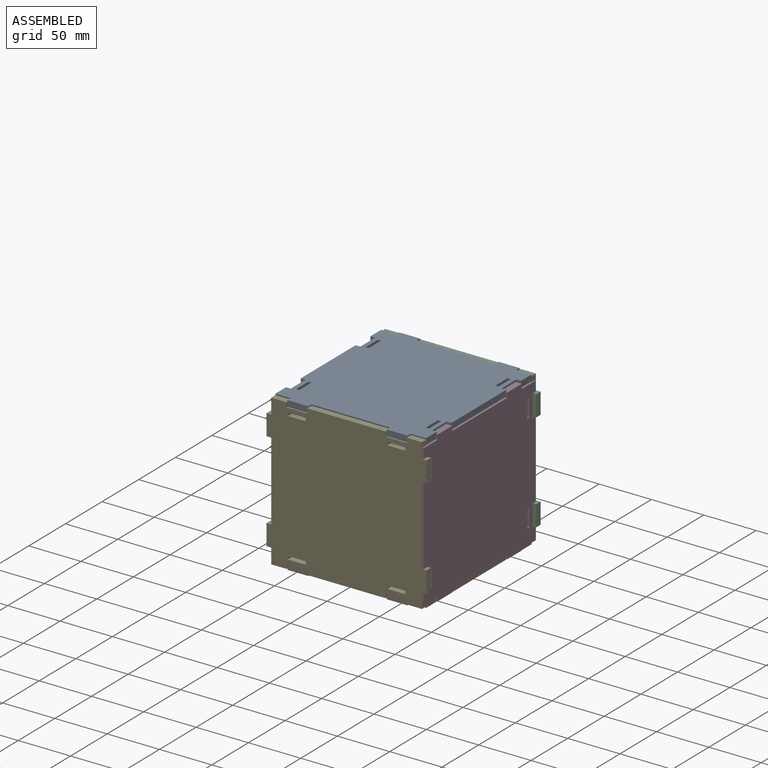
[diagram: assembled view]
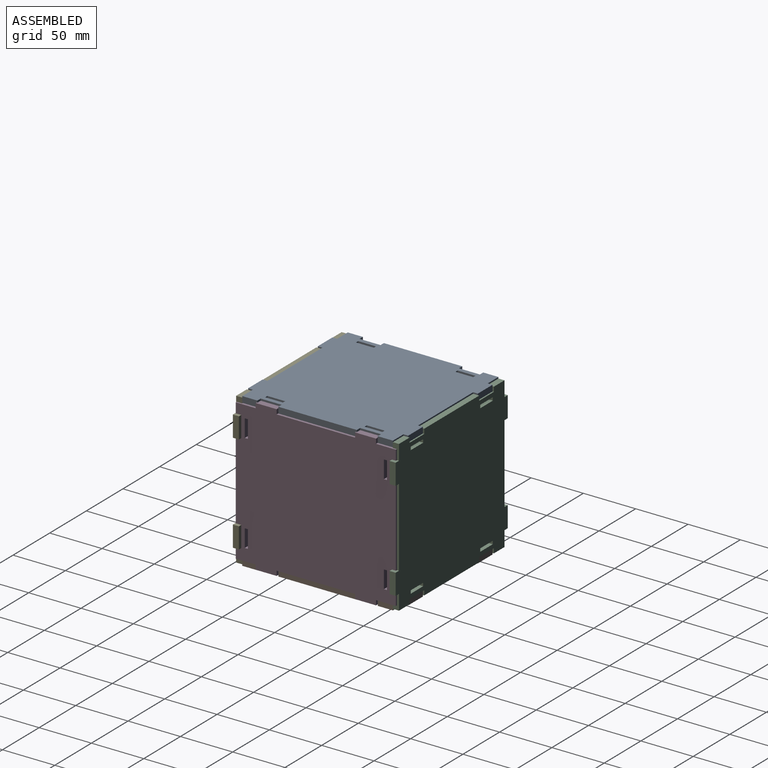
[diagram: assembled view, second angle]
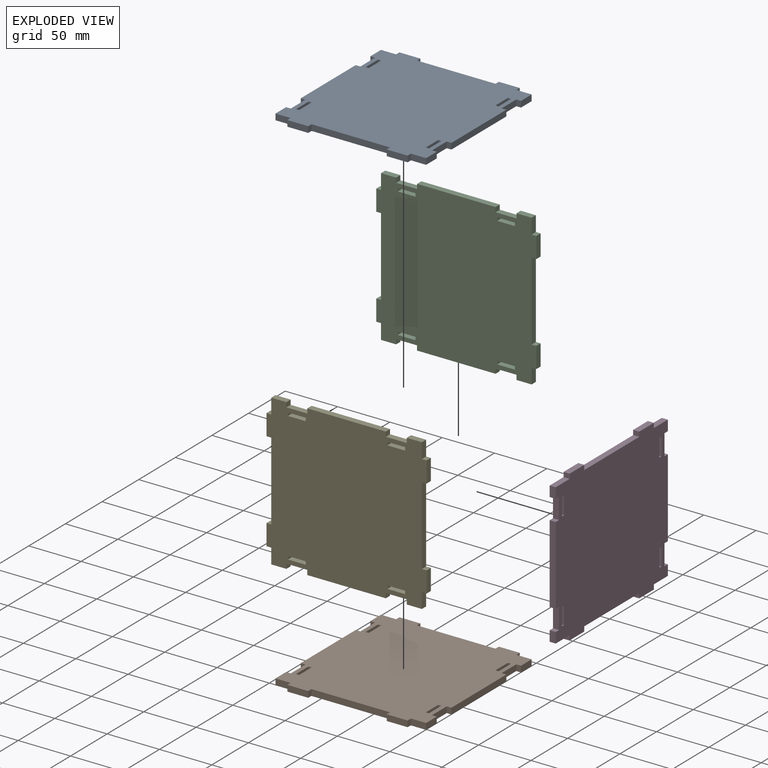
[diagram: exploded view]
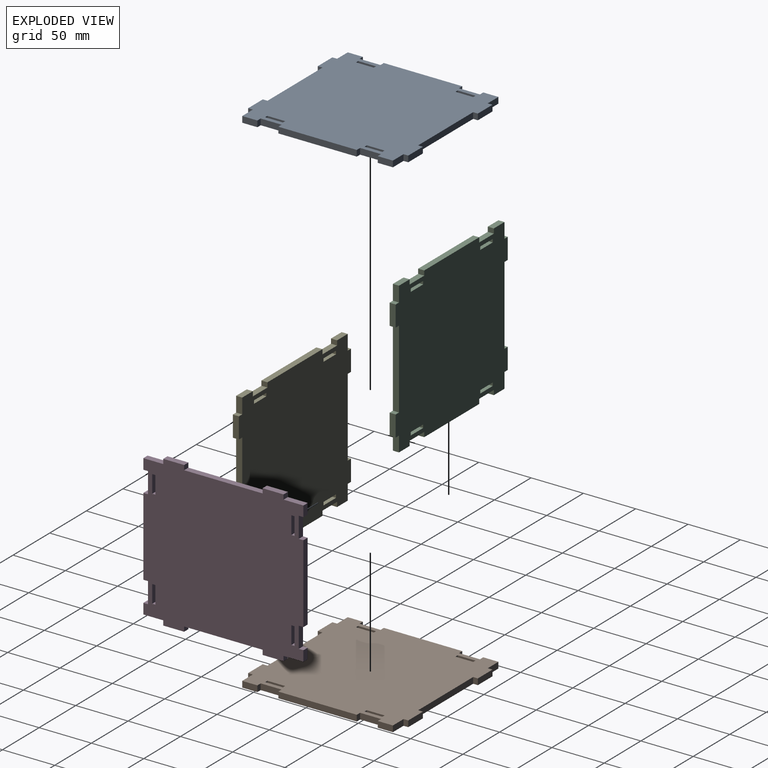
[diagram: exploded view, second angle]
ASSEMBLY  parts=5 mates=10
PART A: 54 faces, bbox 144x5.8x153 mm
  f0: plane 5.8x3mm, normal (0,0,-1), area 17.4mm2, adj f1,f51,f52,f53
  f1: plane 17x5.8mm, normal (-1,0,0), area 98.6mm2, adj f0,f2,f52,f53
  f2: plane 5.8x3mm, normal (0,0,1), area 17.4mm2, adj f1,f51,f52,f53
  f3: plane 5.8x3mm, normal (0,0,1), area 17.4mm2, adj f4,f47,f52,f53
  f4: plane 17x5.8mm, normal (1,0,0), area 98.6mm2, adj f3,f5,f52,f53
  f5: plane 5.8x3mm, normal (0,0,-1), area 17.4mm2, adj f4,f47,f52,f53
  f6: plane 5.8x4.5mm, normal (1,0,0), area 26.1mm2, adj f7,f48,f52,f53
  f7: plane 20x5.8mm, normal (0,0,1), area 116mm2, adj f6,f8,f52,f53
  f8: plane 5.8x4.5mm, normal (-1,0,0), area 26.1mm2, adj f7,f9,f52,f53
  f9: plane 75x5.8mm, normal (0,0,1), area 435mm2, adj f8,f10,f52,f53
  f10: plane 5.8x4.5mm, normal (1,0,0), area 26.1mm2, adj f9,f11,f52,f53
  f11: plane 20x5.8mm, normal (0,0,1), area 116mm2, adj f10,f12,f52,f53
  f12: plane 5.8x4.5mm, normal (-1,0,0), area 26.1mm2, adj f11,f13,f52,f53
  f13: plane 14.5x5.8mm, normal (0,0,1), area 84.1mm2, adj f12,f14,f52,f53
  f14: plane 14.5x5.8mm, normal (-1,0,0), area 84.1mm2, adj f13,f15,f52,f53
  f15: plane 5.8x4.5mm, normal (0,0,-1), area 26.1mm2, adj f14,f16,f52,f53
  f16: plane 20x5.8mm, normal (-1,0,0), area 116mm2, adj f15,f17,f52,f53
  f17: plane 5.8x4.5mm, normal (0,0,1), area 26.1mm2, adj f16,f18,f52,f53
  f18: plane 75x5.8mm, normal (-1,0,0), area 435mm2, adj f17,f19,f52,f53
  f19: plane 5.8x4.5mm, normal (0,0,-1), area 26.1mm2, adj f18,f20,f52,f53
  f20: plane 20x5.8mm, normal (-1,0,0), area 116mm2, adj f19,f21,f52,f53
  f21: plane 5.8x4.5mm, normal (0,0,1), area 26.1mm2, adj f20,f22,f52,f53
  f22: plane 14.5x5.8mm, normal (-1,0,0), area 84.1mm2, adj f21,f23,f52,f53
  f23: plane 14.5x5.8mm, normal (0,0,-1), area 84.1mm2, adj f22,f24,f52,f53
  f24: plane 5.8x4.5mm, normal (-1,0,0), area 26.1mm2, adj f23,f25,f52,f53
  f25: plane 20x5.8mm, normal (0,0,-1), area 116mm2, adj f24,f26,f52,f53
  f26: plane 5.8x4.5mm, normal (1,0,0), area 26.1mm2, adj f25,f27,f52,f53
  f27: plane 75x5.8mm, normal (0,0,-1), area 435mm2, adj f26,f28,f52,f53
  f28: plane 5.8x4.5mm, normal (-1,0,0), area 26.1mm2, adj f27,f29,f52,f53
  f29: plane 20x5.8mm, normal (0,0,-1), area 116mm2, adj f28,f30,f52,f53
  f30: plane 5.8x4.5mm, normal (1,0,0), area 26.1mm2, adj f29,f31,f52,f53
  f31: plane 14.5x5.8mm, normal (0,0,-1), area 84.1mm2, adj f30,f32,f52,f53
  f32: plane 14.5x5.8mm, normal (1,0,0), area 84.1mm2, adj f31,f33,f52,f53
  f33: plane 5.8x4.5mm, normal (0,0,1), area 26.1mm2, adj f32,f34,f52,f53
  f34: plane 20x5.8mm, normal (1,0,0), area 116mm2, adj f33,f35,f52,f53
  f35: plane 5.8x4.5mm, normal (0,0,-1), area 26.1mm2, adj f34,f36,f52,f53
  f36: plane 75x5.8mm, normal (1,0,0), area 435mm2, adj f35,f37,f52,f53
  f37: plane 5.8x4.5mm, normal (0,0,1), area 26.1mm2, adj f36,f38,f52,f53
  f38: plane 20x5.8mm, normal (1,0,0), area 116mm2, adj f37,f39,f52,f53
  f39: plane 5.8x4.5mm, normal (0,0,-1), area 26.1mm2, adj f38,f40,f52,f53
  f40: plane 14.5x5.8mm, normal (1,0,0), area 84.1mm2, adj f39,f48,f52,f53
  f41: plane 17x5.8mm, normal (-1,0,0), area 98.6mm2, adj f42,f49,f52,f53
  f42: plane 5.8x3mm, normal (0,0,1), area 17.4mm2, adj f41,f43,f52,f53
  f43: plane 17x5.8mm, normal (1,0,0), area 98.6mm2, adj f42,f49,f52,f53
  f44: plane 17x5.8mm, normal (1,0,0), area 98.6mm2, adj f45,f50,f52,f53
  f45: plane 5.8x3mm, normal (0,0,-1), area 17.4mm2, adj f44,f46,f52,f53
  f46: plane 17x5.8mm, normal (-1,0,0), area 98.6mm2, adj f45,f50,f52,f53
  f47: plane 17x5.8mm, normal (-1,0,0), area 98.6mm2, adj f3,f5,f52,f53
  f48: plane 14.5x5.8mm, normal (0,0,1), area 84.1mm2, adj f6,f40,f52,f53
  f49: plane 5.8x3mm, normal (0,0,-1), area 17.4mm2, adj f41,f43,f52,f53
  f50: plane 5.8x3mm, normal (0,0,1), area 17.4mm2, adj f44,f46,f52,f53
  f51: plane 17x5.8mm, normal (1,0,0), area 98.6mm2, adj f0,f2,f52,f53
  f52: plane 153x144mm, normal (0,-1,0), area 20532mm2, adj f0,f1,f2,f3,f4,f5,f6,f7
  f53: plane 153x144mm, normal (0,1,0), area 20532mm2, adj f0,f1,f2,f3,f4,f5,f6,f7
PART B: same geometry as A
PART C: same geometry as A
PART D: 54 faces, bbox 153x5.8x144 mm
  f0: plane 5.8x3mm, normal (0,0,-1), area 17.4mm2, adj f1,f51,f52,f53
  f1: plane 17x5.8mm, normal (-1,0,0), area 98.6mm2, adj f0,f2,f52,f53
  f2: plane 5.8x3mm, normal (0,0,1), area 17.4mm2, adj f1,f51,f52,f53
  f3: plane 5.8x3mm, normal (0,0,1), area 17.4mm2, adj f4,f47,f52,f53
  f4: plane 17x5.8mm, normal (1,0,0), area 98.6mm2, adj f3,f5,f52,f53
  f5: plane 5.8x3mm, normal (0,0,-1), area 17.4mm2, adj f4,f47,f52,f53
  f6: plane 5.8x4.5mm, normal (1,0,0), area 26.1mm2, adj f7,f48,f52,f53
  f7: plane 20x5.8mm, normal (0,0,1), area 116mm2, adj f6,f8,f52,f53
  f8: plane 5.8x4.5mm, normal (-1,0,0), area 26.1mm2, adj f7,f9,f52,f53
  f9: plane 75x5.8mm, normal (0,0,1), area 435mm2, adj f8,f10,f52,f53
  f10: plane 5.8x4.5mm, normal (1,0,0), area 26.1mm2, adj f9,f11,f52,f53
  f11: plane 20x5.8mm, normal (0,0,1), area 116mm2, adj f10,f12,f52,f53
  f12: plane 5.8x4.5mm, normal (-1,0,0), area 26.1mm2, adj f11,f13,f52,f53
  f13: plane 19x5.8mm, normal (0,0,1), area 110.2mm2, adj f12,f14,f52,f53
  f14: plane 10x5.8mm, normal (-1,0,0), area 58mm2, adj f13,f15,f52,f53
  f15: plane 5.8x4.5mm, normal (0,0,-1), area 26.1mm2, adj f14,f16,f52,f53
  f16: plane 20x5.8mm, normal (-1,0,0), area 116mm2, adj f15,f17,f52,f53
  f17: plane 5.8x4.5mm, normal (0,0,1), area 26.1mm2, adj f16,f18,f52,f53
  f18: plane 75x5.8mm, normal (-1,0,0), area 435mm2, adj f17,f19,f52,f53
  f19: plane 5.8x4.5mm, normal (0,0,-1), area 26.1mm2, adj f18,f20,f52,f53
  f20: plane 20x5.8mm, normal (-1,0,0), area 116mm2, adj f19,f21,f52,f53
  f21: plane 5.8x4.5mm, normal (0,0,1), area 26.1mm2, adj f20,f22,f52,f53
  f22: plane 10x5.8mm, normal (-1,0,0), area 58mm2, adj f21,f23,f52,f53
  f23: plane 19x5.8mm, normal (0,0,-1), area 110.2mm2, adj f22,f24,f52,f53
  f24: plane 5.8x4.5mm, normal (-1,0,0), area 26.1mm2, adj f23,f25,f52,f53
  f25: plane 20x5.8mm, normal (0,0,-1), area 116mm2, adj f24,f26,f52,f53
  f26: plane 5.8x4.5mm, normal (1,0,0), area 26.1mm2, adj f25,f27,f52,f53
  f27: plane 75x5.8mm, normal (0,0,-1), area 435mm2, adj f26,f28,f52,f53
  f28: plane 5.8x4.5mm, normal (-1,0,0), area 26.1mm2, adj f27,f29,f52,f53
  f29: plane 20x5.8mm, normal (0,0,-1), area 116mm2, adj f28,f30,f52,f53
  f30: plane 5.8x4.5mm, normal (1,0,0), area 26.1mm2, adj f29,f31,f52,f53
  f31: plane 19x5.8mm, normal (0,0,-1), area 110.2mm2, adj f30,f32,f52,f53
  f32: plane 10x5.8mm, normal (1,0,0), area 58mm2, adj f31,f33,f52,f53
  f33: plane 5.8x4.5mm, normal (0,0,1), area 26.1mm2, adj f32,f34,f52,f53
  f34: plane 20x5.8mm, normal (1,0,0), area 116mm2, adj f33,f35,f52,f53
  f35: plane 5.8x4.5mm, normal (0,0,-1), area 26.1mm2, adj f34,f36,f52,f53
  f36: plane 75x5.8mm, normal (1,0,0), area 435mm2, adj f35,f37,f52,f53
  f37: plane 5.8x4.5mm, normal (0,0,1), area 26.1mm2, adj f36,f38,f52,f53
  f38: plane 20x5.8mm, normal (1,0,0), area 116mm2, adj f37,f39,f52,f53
  f39: plane 5.8x4.5mm, normal (0,0,-1), area 26.1mm2, adj f38,f40,f52,f53
  f40: plane 10x5.8mm, normal (1,0,0), area 58mm2, adj f39,f48,f52,f53
  f41: plane 17x5.8mm, normal (-1,0,0), area 98.6mm2, adj f42,f49,f52,f53
  f42: plane 5.8x3mm, normal (0,0,1), area 17.4mm2, adj f41,f43,f52,f53
  f43: plane 17x5.8mm, normal (1,0,0), area 98.6mm2, adj f42,f49,f52,f53
  f44: plane 17x5.8mm, normal (1,0,0), area 98.6mm2, adj f45,f50,f52,f53
  f45: plane 5.8x3mm, normal (0,0,-1), area 17.4mm2, adj f44,f46,f52,f53
  f46: plane 17x5.8mm, normal (-1,0,0), area 98.6mm2, adj f45,f50,f52,f53
  f47: plane 17x5.8mm, normal (-1,0,0), area 98.6mm2, adj f3,f5,f52,f53
  f48: plane 19x5.8mm, normal (0,0,1), area 110.2mm2, adj f6,f40,f52,f53
  f49: plane 5.8x3mm, normal (0,0,-1), area 17.4mm2, adj f41,f43,f52,f53
  f50: plane 5.8x3mm, normal (0,0,1), area 17.4mm2, adj f44,f46,f52,f53
  f51: plane 17x5.8mm, normal (1,0,0), area 98.6mm2, adj f0,f2,f52,f53
  f52: plane 153x144mm, normal (0,-1,0), area 20451mm2, adj f0,f1,f2,f3,f4,f5,f6,f7
  f53: plane 153x144mm, normal (0,1,0), area 20451mm2, adj f0,f1,f2,f3,f4,f5,f6,f7
PART E: same geometry as A
PLACE A rot(axis=(0,-0.71,-0.71),180deg) t=(-167,164.61,253.41)mm
PLACE B rot(axis=(0,-0.71,0.71),180deg) t=(-167,164.61,106.81)mm
PLACE C rot(axis=(0,1,0),90deg) t=(-167,242.41,180.11)mm
PLACE D rot(axis=(-0.71,-0.71,0),180deg) t=(-93.7,163.89,179.6)mm
PLACE E rot(axis=(0.71,0,-0.71),180deg) t=(-167,86.81,180.11)mm
MATE planar A.f52 <-> E.f20  axis (0,0,-1) through (-119.5,88.11,247.61)mm
MATE planar A.f27 <-> E.f52  axis (0,-1,0) through (-167,92.61,250.51)mm
MATE planar B.f12 <-> E.f33  axis (1,0,0) through (-109.5,90.36,109.71)mm
MATE planar B.f13 <-> E.f52  axis (0,-1,0) through (-102.25,92.61,109.71)mm
MATE planar E.f34 <-> B.f52  axis (0,0,-1) through (-119.5,89.71,112.61)mm
MATE planar E.f21 <-> A.f24  axis (-1,0,0) through (-109.5,89.71,249.86)mm
MATE planar D.f52 <-> B.f20  axis (-1,0,0) through (-99.5,163.89,179.6)mm
MATE planar C.f34 <-> B.f52  axis (0,0,-1) through (-214.5,239.51,112.61)mm
MATE planar C.f52 <-> B.f31  axis (0,-1,0) through (-167,236.61,180.11)mm
MATE planar C.f33 <-> B.f30  axis (1,0,0) through (-224.5,239.51,110.36)mm
